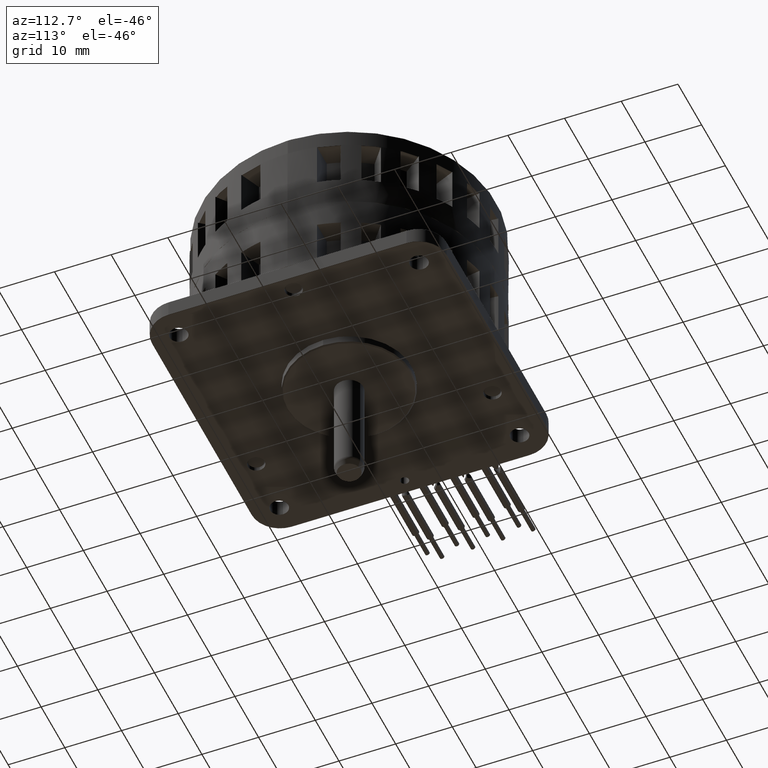
[diagram: clean part render]
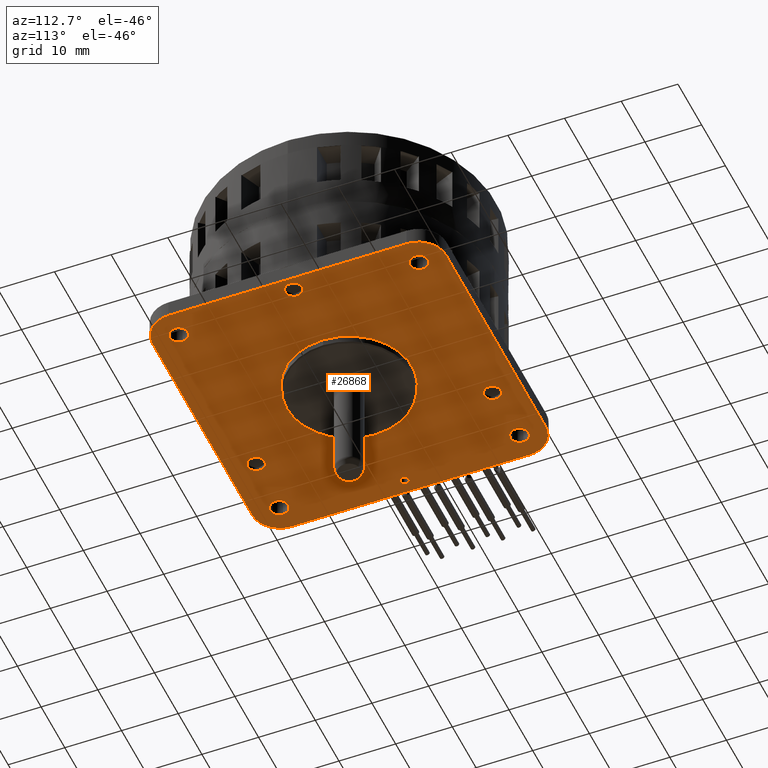
[diagram: same view with one face highlighted and labeled with its STEP entity id]
A machine part, auxiliary view. The second image highlights one B-rep face of the part: STEP entity #26868.
In plain terms, the highlighted planar face has unit normal (0, 0, 1).
Its self-contained STEP definition (entity closure, byte-faithful):
#25896=DIRECTION('',(-1.E0,0.E0,0.E0));
#25897=VECTOR('',#25896,4.2E1);
#25898=CARTESIAN_POINT('',(2.1E1,-2.59E1,0.E0));
#25899=LINE('',#25898,#25897);
#25923=DIRECTION('',(0.E0,-1.E0,0.E0));
#25924=VECTOR('',#25923,4.2E1);
#25925=CARTESIAN_POINT('',(2.59E1,2.1E1,0.E0));
#25926=LINE('',#25925,#25924);
#25946=DIRECTION('',(1.E0,0.E0,0.E0));
#25947=VECTOR('',#25946,4.2E1);
#25948=CARTESIAN_POINT('',(-2.1E1,2.59E1,0.E0));
#25949=LINE('',#25948,#25947);
#25965=DIRECTION('',(0.E0,1.E0,0.E0));
#25966=VECTOR('',#25965,4.2E1);
#25967=CARTESIAN_POINT('',(-2.59E1,-2.1E1,0.E0));
#25968=LINE('',#25967,#25966);
#25973=CARTESIAN_POINT('',(-2.1E1,-2.1E1,0.E0));
#25974=DIRECTION('',(0.E0,0.E0,1.E0));
#25975=DIRECTION('',(-1.E0,0.E0,0.E0));
#25976=AXIS2_PLACEMENT_3D('',#25973,#25974,#25975);
#25978=CARTESIAN_POINT('',(2.1E1,-2.1E1,0.E0));
#25979=DIRECTION('',(0.E0,0.E0,1.E0));
#25980=DIRECTION('',(0.E0,-1.E0,0.E0));
#25981=AXIS2_PLACEMENT_3D('',#25978,#25979,#25980);
#25983=CARTESIAN_POINT('',(2.1E1,2.1E1,0.E0));
#25984=DIRECTION('',(0.E0,0.E0,1.E0));
#25985=DIRECTION('',(1.E0,0.E0,0.E0));
#25986=AXIS2_PLACEMENT_3D('',#25983,#25984,#25985);
#25988=CARTESIAN_POINT('',(-2.1E1,2.1E1,0.E0));
#25989=DIRECTION('',(0.E0,0.E0,1.E0));
#25990=DIRECTION('',(0.E0,1.E0,0.E0));
#25991=AXIS2_PLACEMENT_3D('',#25988,#25989,#25990);
#25993=CARTESIAN_POINT('',(0.E0,0.E0,0.E0));
#25994=DIRECTION('',(0.E0,0.E0,-1.E0));
#25995=DIRECTION('',(-1.E0,0.E0,0.E0));
#25996=AXIS2_PLACEMENT_3D('',#25993,#25994,#25995);
#25998=CARTESIAN_POINT('',(0.E0,0.E0,0.E0));
#25999=DIRECTION('',(0.E0,0.E0,-1.E0));
#26000=DIRECTION('',(1.E0,0.E0,0.E0));
#26001=AXIS2_PLACEMENT_3D('',#25998,#25999,#26000);
#26003=CARTESIAN_POINT('',(-2.12E1,2.12E1,0.E0));
#26004=DIRECTION('',(0.E0,0.E0,-1.E0));
#26005=DIRECTION('',(1.E0,0.E0,0.E0));
#26006=AXIS2_PLACEMENT_3D('',#26003,#26004,#26005);
#26008=CARTESIAN_POINT('',(-2.12E1,2.12E1,0.E0));
#26009=DIRECTION('',(0.E0,0.E0,-1.E0));
#26010=DIRECTION('',(-1.E0,0.E0,0.E0));
#26011=AXIS2_PLACEMENT_3D('',#26008,#26009,#26010);
#26013=CARTESIAN_POINT('',(2.12E1,2.12E1,0.E0));
#26014=DIRECTION('',(0.E0,0.E0,-1.E0));
#26015=DIRECTION('',(1.E0,0.E0,0.E0));
#26016=AXIS2_PLACEMENT_3D('',#26013,#26014,#26015);
#26018=CARTESIAN_POINT('',(2.12E1,2.12E1,0.E0));
#26019=DIRECTION('',(0.E0,0.E0,-1.E0));
#26020=DIRECTION('',(-1.E0,0.E0,0.E0));
#26021=AXIS2_PLACEMENT_3D('',#26018,#26019,#26020);
#26023=CARTESIAN_POINT('',(2.12E1,-2.12E1,0.E0));
#26024=DIRECTION('',(0.E0,0.E0,-1.E0));
#26025=DIRECTION('',(-1.E0,0.E0,0.E0));
#26026=AXIS2_PLACEMENT_3D('',#26023,#26024,#26025);
#26028=CARTESIAN_POINT('',(2.12E1,-2.12E1,0.E0));
#26029=DIRECTION('',(0.E0,0.E0,-1.E0));
#26030=DIRECTION('',(1.E0,0.E0,0.E0));
#26031=AXIS2_PLACEMENT_3D('',#26028,#26029,#26030);
#26033=CARTESIAN_POINT('',(-2.12E1,-2.12E1,0.E0));
#26034=DIRECTION('',(0.E0,0.E0,-1.E0));
#26035=DIRECTION('',(-1.E0,0.E0,0.E0));
#26036=AXIS2_PLACEMENT_3D('',#26033,#26034,#26035);
#26038=CARTESIAN_POINT('',(-2.12E1,-2.12E1,0.E0));
#26039=DIRECTION('',(0.E0,0.E0,-1.E0));
#26040=DIRECTION('',(1.E0,0.E0,0.E0));
#26041=AXIS2_PLACEMENT_3D('',#26038,#26039,#26040);
#26043=CARTESIAN_POINT('',(-1.062337769391E1,2.084955266601E1,0.E0));
#26044=DIRECTION('',(0.E0,0.E0,-1.E0));
#26045=DIRECTION('',(-1.E0,0.E0,0.E0));
#26046=AXIS2_PLACEMENT_3D('',#26043,#26044,#26045);
#26048=CARTESIAN_POINT('',(-1.062337769391E1,2.084955266601E1,0.E0));
#26049=DIRECTION('',(0.E0,0.E0,-1.E0));
#26050=DIRECTION('',(1.E0,0.E0,0.E0));
#26051=AXIS2_PLACEMENT_3D('',#26048,#26049,#26050);
#26053=CARTESIAN_POINT('',(2.34E1,0.E0,0.E0));
#26054=DIRECTION('',(0.E0,0.E0,-1.E0));
#26055=DIRECTION('',(-1.E0,0.E0,0.E0));
#26056=AXIS2_PLACEMENT_3D('',#26053,#26054,#26055);
#26058=CARTESIAN_POINT('',(2.34E1,0.E0,0.E0));
#26059=DIRECTION('',(0.E0,0.E0,-1.E0));
#26060=DIRECTION('',(1.E0,0.E0,0.E0));
#26061=AXIS2_PLACEMENT_3D('',#26058,#26059,#26060);
#26063=CARTESIAN_POINT('',(-1.062337769391E1,-2.084955266601E1,0.E0));
#26064=DIRECTION('',(0.E0,0.E0,-1.E0));
#26065=DIRECTION('',(-1.E0,0.E0,0.E0));
#26066=AXIS2_PLACEMENT_3D('',#26063,#26064,#26065);
#26068=CARTESIAN_POINT('',(-1.062337769391E1,-2.084955266601E1,0.E0));
#26069=DIRECTION('',(0.E0,0.E0,-1.E0));
#26070=DIRECTION('',(1.E0,0.E0,0.E0));
#26071=AXIS2_PLACEMENT_3D('',#26068,#26069,#26070);
#26073=CARTESIAN_POINT('',(-2.34E1,0.E0,0.E0));
#26074=DIRECTION('',(0.E0,0.E0,-1.E0));
#26075=DIRECTION('',(-1.E0,0.E0,0.E0));
#26076=AXIS2_PLACEMENT_3D('',#26073,#26074,#26075);
#26078=CARTESIAN_POINT('',(-2.34E1,0.E0,0.E0));
#26079=DIRECTION('',(0.E0,0.E0,-1.E0));
#26080=DIRECTION('',(1.E0,0.E0,0.E0));
#26081=AXIS2_PLACEMENT_3D('',#26078,#26079,#26080);
#26217=CARTESIAN_POINT('',(1.11E1,0.E0,0.E0));
#26218=VERTEX_POINT('',#26217);
#26219=CARTESIAN_POINT('',(-1.11E1,0.E0,0.E0));
#26220=VERTEX_POINT('',#26219);
#26305=CARTESIAN_POINT('',(-2.1E1,-2.59E1,0.E0));
#26306=VERTEX_POINT('',#26305);
#26307=CARTESIAN_POINT('',(-2.59E1,-2.1E1,0.E0));
#26308=VERTEX_POINT('',#26307);
#26309=CARTESIAN_POINT('',(2.1E1,-2.59E1,0.E0));
#26310=VERTEX_POINT('',#26309);
#26311=CARTESIAN_POINT('',(2.59E1,-2.1E1,0.E0));
#26312=VERTEX_POINT('',#26311);
#26313=CARTESIAN_POINT('',(2.59E1,2.1E1,0.E0));
#26314=VERTEX_POINT('',#26313);
#26315=CARTESIAN_POINT('',(2.1E1,2.59E1,0.E0));
#26316=VERTEX_POINT('',#26315);
#26317=CARTESIAN_POINT('',(-2.1E1,2.59E1,0.E0));
#26318=VERTEX_POINT('',#26317);
#26319=CARTESIAN_POINT('',(-2.59E1,2.1E1,0.E0));
#26320=VERTEX_POINT('',#26319);
#26321=CARTESIAN_POINT('',(-1.96E1,2.12E1,0.E0));
#26322=CARTESIAN_POINT('',(-2.28E1,2.12E1,0.E0));
#26323=VERTEX_POINT('',#26321);
#26324=VERTEX_POINT('',#26322);
#26325=CARTESIAN_POINT('',(2.28E1,2.12E1,0.E0));
#26326=CARTESIAN_POINT('',(1.96E1,2.12E1,0.E0));
#26327=VERTEX_POINT('',#26325);
#26328=VERTEX_POINT('',#26326);
#26329=CARTESIAN_POINT('',(1.96E1,-2.12E1,0.E0));
#26330=CARTESIAN_POINT('',(2.28E1,-2.12E1,0.E0));
#26331=VERTEX_POINT('',#26329);
#26332=VERTEX_POINT('',#26330);
#26333=CARTESIAN_POINT('',(-2.28E1,-2.12E1,0.E0));
#26334=CARTESIAN_POINT('',(-1.96E1,-2.12E1,0.E0));
#26335=VERTEX_POINT('',#26333);
#26336=VERTEX_POINT('',#26334);
#26337=CARTESIAN_POINT('',(-1.212337769391E1,2.084955266601E1,0.E0));
#26338=CARTESIAN_POINT('',(-9.123377693910E0,2.084955266601E1,0.E0));
#26339=VERTEX_POINT('',#26337);
#26340=VERTEX_POINT('',#26338);
#26341=CARTESIAN_POINT('',(2.19E1,0.E0,0.E0));
#26342=CARTESIAN_POINT('',(2.49E1,0.E0,0.E0));
#26343=VERTEX_POINT('',#26341);
#26344=VERTEX_POINT('',#26342);
#26345=CARTESIAN_POINT('',(-1.212337769391E1,-2.084955266601E1,0.E0));
#26346=CARTESIAN_POINT('',(-9.123377693910E0,-2.084955266601E1,0.E0));
#26347=VERTEX_POINT('',#26345);
#26348=VERTEX_POINT('',#26346);
#26349=CARTESIAN_POINT('',(-2.415E1,0.E0,0.E0));
#26350=CARTESIAN_POINT('',(-2.265E1,0.E0,0.E0));
#26351=VERTEX_POINT('',#26349);
#26352=VERTEX_POINT('',#26350);
#26800=CARTESIAN_POINT('',(-2.6E1,2.6E1,0.E0));
#26801=DIRECTION('',(0.E0,0.E0,1.E0));
#26802=DIRECTION('',(1.E0,0.E0,0.E0));
#26803=AXIS2_PLACEMENT_3D('',#26800,#26801,#26802);
#26804=PLANE('',#26803);
#26805=ORIENTED_EDGE('',*,*,#26793,.F.);
#26806=ORIENTED_EDGE('',*,*,#26695,.T.);
#26807=ORIENTED_EDGE('',*,*,#26710,.F.);
#26808=ORIENTED_EDGE('',*,*,#26724,.T.);
#26809=ORIENTED_EDGE('',*,*,#26740,.F.);
#26810=ORIENTED_EDGE('',*,*,#26754,.T.);
#26811=ORIENTED_EDGE('',*,*,#26768,.F.);
#26812=ORIENTED_EDGE('',*,*,#26780,.T.);
#26813=EDGE_LOOP('',(#26805,#26806,#26807,#26808,#26809,#26810,#26811,#26812));
#26814=FACE_OUTER_BOUND('',#26813,.F.);
#26815=ORIENTED_EDGE('',*,*,#26368,.T.);
#26817=ORIENTED_EDGE('',*,*,#26816,.T.);
#26818=EDGE_LOOP('',(#26815,#26817));
#26819=FACE_BOUND('',#26818,.F.);
#26821=ORIENTED_EDGE('',*,*,#26820,.T.);
#26823=ORIENTED_EDGE('',*,*,#26822,.T.);
#26824=EDGE_LOOP('',(#26821,#26823));
#26825=FACE_BOUND('',#26824,.F.);
#26827=ORIENTED_EDGE('',*,*,#26826,.T.);
#26829=ORIENTED_EDGE('',*,*,#26828,.T.);
#26830=EDGE_LOOP('',(#26827,#26829));
#26831=FACE_BOUND('',#26830,.F.);
#26833=ORIENTED_EDGE('',*,*,#26832,.T.);
#26835=ORIENTED_EDGE('',*,*,#26834,.T.);
#26836=EDGE_LOOP('',(#26833,#26835));
#26837=FACE_BOUND('',#26836,.F.);
#26839=ORIENTED_EDGE('',*,*,#26838,.T.);
#26841=ORIENTED_EDGE('',*,*,#26840,.T.);
#26842=EDGE_LOOP('',(#26839,#26841));
#26843=FACE_BOUND('',#26842,.F.);
#26845=ORIENTED_EDGE('',*,*,#26844,.T.);
#26847=ORIENTED_EDGE('',*,*,#26846,.T.);
#26848=EDGE_LOOP('',(#26845,#26847));
#26849=FACE_BOUND('',#26848,.F.);
#26851=ORIENTED_EDGE('',*,*,#26850,.T.);
#26853=ORIENTED_EDGE('',*,*,#26852,.T.);
#26854=EDGE_LOOP('',(#26851,#26853));
#26855=FACE_BOUND('',#26854,.F.);
#26857=ORIENTED_EDGE('',*,*,#26856,.T.);
#26859=ORIENTED_EDGE('',*,*,#26858,.T.);
#26860=EDGE_LOOP('',(#26857,#26859));
#26861=FACE_BOUND('',#26860,.F.);
#26863=ORIENTED_EDGE('',*,*,#26862,.T.);
#26865=ORIENTED_EDGE('',*,*,#26864,.T.);
#26866=EDGE_LOOP('',(#26863,#26865));
#26867=FACE_BOUND('',#26866,.F.);
#26868=ADVANCED_FACE('',(#26814,#26819,#26825,#26831,#26837,#26843,#26849,
#26855,#26861,#26867),#26804,.F.);
#25977=CIRCLE('',#25976,4.9E0);
#25982=CIRCLE('',#25981,4.9E0);
#25987=CIRCLE('',#25986,4.9E0);
#25992=CIRCLE('',#25991,4.9E0);
#25997=CIRCLE('',#25996,1.11E1);
#26002=CIRCLE('',#26001,1.11E1);
#26007=CIRCLE('',#26006,1.6E0);
#26012=CIRCLE('',#26011,1.6E0);
#26017=CIRCLE('',#26016,1.6E0);
#26022=CIRCLE('',#26021,1.6E0);
#26027=CIRCLE('',#26026,1.6E0);
#26032=CIRCLE('',#26031,1.6E0);
#26037=CIRCLE('',#26036,1.6E0);
#26042=CIRCLE('',#26041,1.6E0);
#26047=CIRCLE('',#26046,1.5E0);
#26052=CIRCLE('',#26051,1.5E0);
#26057=CIRCLE('',#26056,1.5E0);
#26062=CIRCLE('',#26061,1.5E0);
#26067=CIRCLE('',#26066,1.5E0);
#26072=CIRCLE('',#26071,1.5E0);
#26077=CIRCLE('',#26076,7.5E-1);
#26082=CIRCLE('',#26081,7.5E-1);
#26368=EDGE_CURVE('',#26220,#26218,#25997,.T.);
#26695=EDGE_CURVE('',#26308,#26306,#25977,.T.);
#26710=EDGE_CURVE('',#26310,#26306,#25899,.T.);
#26724=EDGE_CURVE('',#26310,#26312,#25982,.T.);
#26740=EDGE_CURVE('',#26314,#26312,#25926,.T.);
#26754=EDGE_CURVE('',#26314,#26316,#25987,.T.);
#26768=EDGE_CURVE('',#26318,#26316,#25949,.T.);
#26780=EDGE_CURVE('',#26318,#26320,#25992,.T.);
#26793=EDGE_CURVE('',#26308,#26320,#25968,.T.);
#26816=EDGE_CURVE('',#26218,#26220,#26002,.T.);
#26820=EDGE_CURVE('',#26323,#26324,#26007,.T.);
#26822=EDGE_CURVE('',#26324,#26323,#26012,.T.);
#26826=EDGE_CURVE('',#26327,#26328,#26017,.T.);
#26828=EDGE_CURVE('',#26328,#26327,#26022,.T.);
#26832=EDGE_CURVE('',#26331,#26332,#26027,.T.);
#26834=EDGE_CURVE('',#26332,#26331,#26032,.T.);
#26838=EDGE_CURVE('',#26335,#26336,#26037,.T.);
#26840=EDGE_CURVE('',#26336,#26335,#26042,.T.);
#26844=EDGE_CURVE('',#26339,#26340,#26047,.T.);
#26846=EDGE_CURVE('',#26340,#26339,#26052,.T.);
#26850=EDGE_CURVE('',#26343,#26344,#26057,.T.);
#26852=EDGE_CURVE('',#26344,#26343,#26062,.T.);
#26856=EDGE_CURVE('',#26347,#26348,#26067,.T.);
#26858=EDGE_CURVE('',#26348,#26347,#26072,.T.);
#26862=EDGE_CURVE('',#26351,#26352,#26077,.T.);
#26864=EDGE_CURVE('',#26352,#26351,#26082,.T.);